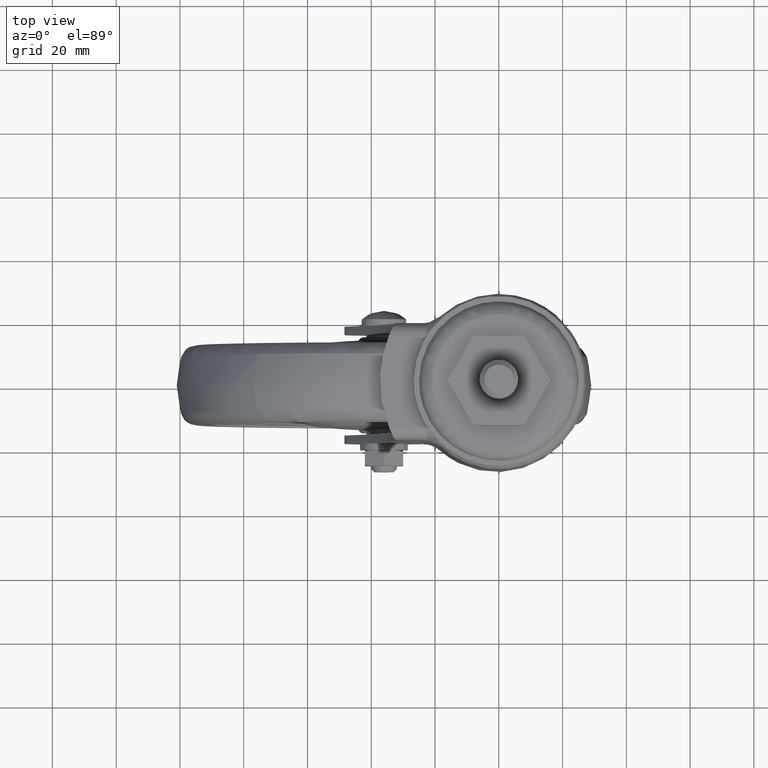
[diagram: clean part render]
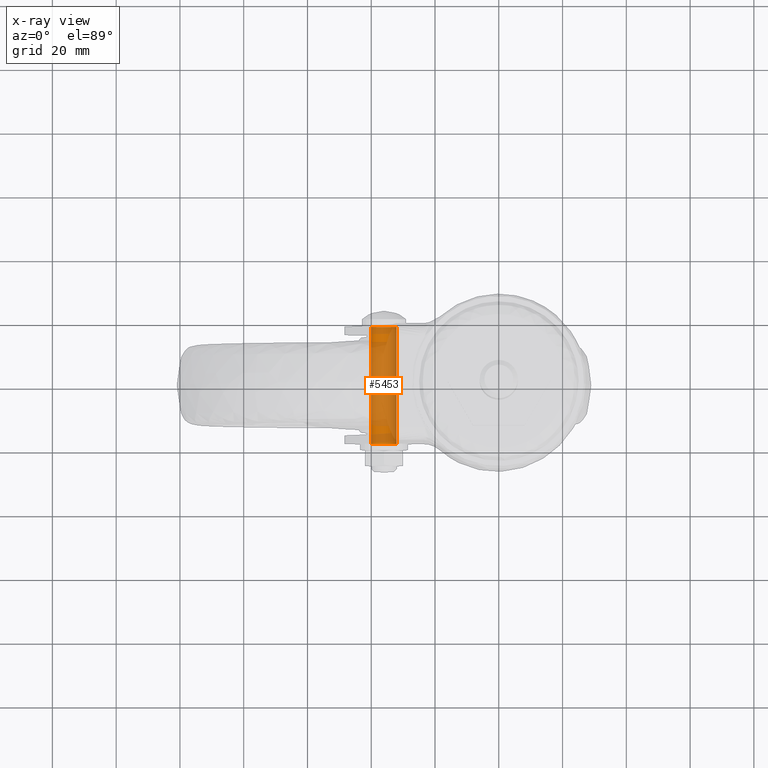
[diagram: x-ray — body ghosted, one internal face saturated and labeled with its STEP entity id]
A machine part, top view, then the same camera in x-ray: the body is ghosted and one INTERNAL B-rep face — a face not visible from any outside direction — is saturated and labeled: STEP entity #5453.
In plain terms, the highlighted face is a freeform B-spline surface patch.
Its self-contained STEP definition (entity closure, byte-faithful):
#5351=CARTESIAN_POINT('',(-32.027961894545342,-19.281181911582149,-82.028055061373095));
#5352=CARTESIAN_POINT('',(-32.014449538205589,-19.281181911582138,-82.141733085448195));
#5353=CARTESIAN_POINT('',(-32.007460806312537,-19.281181911582141,-82.255997841860676));
#5354=CARTESIAN_POINT('',(-31.763266648173111,-19.281181911582138,-86.248537035548154));
#5355=CARTESIAN_POINT('',(-35.755805841860571,-19.281181911582141,-86.492731193687561));
#5356=CARTESIAN_POINT('',(-39.748345035548034,-19.281181911582138,-86.736925351826983));
#5357=CARTESIAN_POINT('',(-39.992539193687463,-19.281181911582141,-82.744386158139520));
#5358=CARTESIAN_POINT('',(-32.027961894545342,19.303633586899284,-82.028055061373095));
#5359=CARTESIAN_POINT('',(-32.014449538205589,19.303633586899277,-82.141733085448195));
#5360=CARTESIAN_POINT('',(-32.007460806312537,19.303633586899281,-82.255997841860676));
#5361=CARTESIAN_POINT('',(-31.763266648173111,19.303633586899281,-86.248537035548154));
#5362=CARTESIAN_POINT('',(-35.755805841860571,19.303633586899281,-86.492731193687561));
#5363=CARTESIAN_POINT('',(-39.748345035548034,19.303633586899281,-86.736925351826983));
#5364=CARTESIAN_POINT('',(-39.992539193687463,19.303633586899281,-82.744386158139520));
#5372=(BOUNDED_SURFACE()B_SPLINE_SURFACE(2,1,((#5351,#5358),(#5352,#5359),(#5353,#5360),(#5354,#5361),(#5355,#5362),(#5356,#5363),(#5357,#5364)),.UNSPECIFIED.,.F.,.F.,.U.)B_SPLINE_SURFACE_WITH_KNOTS((3,2,2,3),(2,2),(0.0,0.265096679918781,6.892513677888295,13.519930675857809),(0.0,38.584815498481433),.UNSPECIFIED.)GEOMETRIC_REPRESENTATION_ITEM()RATIONAL_B_SPLINE_SURFACE(((0.977505800795127,0.977505800795127),(0.988284271247462,0.988284271247462),(1.0,1.0),(0.707106781186548,0.707106781186548),(1.0,1.0),(0.707106781186548,0.707106781186548),(1.0,1.0)))REPRESENTATION_ITEM('')SURFACE());
#5373=CARTESIAN_POINT('',(-32.027961894600928,-18.363042339934751,-82.028055060905359));
#5374=VERTEX_POINT('',#5373);
#5375=CARTESIAN_POINT('',(-36.0,-18.363042339934751,-86.500192000000098));
#5376=VERTEX_POINT('',#5375);
#5377=CARTESIAN_POINT('',(-32.027961894600921,-18.363042339934751,-82.028055060905359));
#5378=CARTESIAN_POINT('',(-32.0,-18.363042339934751,-82.263295520919826));
#5379=CARTESIAN_POINT('',(-32.0,-18.363042339934751,-82.500192000000098));
#5380=CARTESIAN_POINT('',(-31.999999999999996,-18.363042339934751,-86.500192000000098));
#5381=CARTESIAN_POINT('',(-36.0,-18.363042339934751,-86.500192000000098));
#5389=(BOUNDED_CURVE()B_SPLINE_CURVE(2,(#5377,#5378,#5379,#5380,#5381),.UNSPECIFIED.,.F.,.U.)B_SPLINE_CURVE_WITH_KNOTS((3,2,3),(0.229562473475845,0.250000000000000,0.500000000000000),.UNSPECIFIED.)CURVE()GEOMETRIC_REPRESENTATION_ITEM()RATIONAL_B_SPLINE_CURVE((0.956026754109877,0.976055948287019,1.0,0.707106781186548,1.0))REPRESENTATION_ITEM(''));
#5390=EDGE_CURVE('',#5374,#5376,#5389,.T.);
#5391=ORIENTED_EDGE('',*,*,#5390,.T.);
#5392=CARTESIAN_POINT('',(-39.992539193627351,-18.363042339934751,-82.744386159122271));
#5393=VERTEX_POINT('',#5392);
#5394=CARTESIAN_POINT('',(-36.0,-18.363042339934751,-86.500192000000098));
#5395=CARTESIAN_POINT('',(-39.762824265766888,-18.363042339934758,-86.500192000000098));
#5396=CARTESIAN_POINT('',(-39.992539193627351,-18.363042339934754,-82.744386159122271));
#5404=(BOUNDED_CURVE()B_SPLINE_CURVE(2,(#5394,#5395,#5396),.UNSPECIFIED.,.F.,.U.)B_SPLINE_CURVE_WITH_KNOTS((3,3),(0.500000000000000,0.739332962157024),.UNSPECIFIED.)CURVE()GEOMETRIC_REPRESENTATION_ITEM()RATIONAL_B_SPLINE_CURVE((1.0,0.719603993382684,0.976072041491150))REPRESENTATION_ITEM(''));
#5405=EDGE_CURVE('',#5376,#5393,#5404,.T.);
#5406=ORIENTED_EDGE('',*,*,#5405,.T.);
#5407=CARTESIAN_POINT('',(-39.992539193627351,18.362540525960700,-82.744386159122271));
#5408=VERTEX_POINT('',#5407);
#5409=CARTESIAN_POINT('',(-39.992539193627351,-18.363042339934751,-82.744386159122271));
#5410=CARTESIAN_POINT('',(-39.992539193627351,18.362540525960700,-82.744386159122271));
#5411=QUASI_UNIFORM_CURVE('',1,(#5409,#5410),.UNSPECIFIED.,.F.,.U.);
#5412=EDGE_CURVE('',#5393,#5408,#5411,.T.);
#5413=ORIENTED_EDGE('',*,*,#5412,.T.);
#5414=CARTESIAN_POINT('',(-36.0,18.362540525960700,-86.500192000000098));
#5415=VERTEX_POINT('',#5414);
#5416=CARTESIAN_POINT('',(-36.0,18.362540525960700,-86.500192000000098));
#5417=CARTESIAN_POINT('',(-39.762824265766888,18.362540525960707,-86.500192000000098));
#5418=CARTESIAN_POINT('',(-39.992539193627351,18.362540525960704,-82.744386159122271));
#5426=(BOUNDED_CURVE()B_SPLINE_CURVE(2,(#5416,#5417,#5418),.UNSPECIFIED.,.F.,.U.)B_SPLINE_CURVE_WITH_KNOTS((3,3),(0.500000000000000,0.739332962157024),.UNSPECIFIED.)CURVE()GEOMETRIC_REPRESENTATION_ITEM()RATIONAL_B_SPLINE_CURVE((1.0,0.719603993382684,0.976072041491150))REPRESENTATION_ITEM(''));
#5427=EDGE_CURVE('',#5415,#5408,#5426,.T.);
#5428=ORIENTED_EDGE('',*,*,#5427,.F.);
#5429=CARTESIAN_POINT('',(-32.027961894600921,18.362540525960700,-82.028055060905373));
#5430=VERTEX_POINT('',#5429);
#5431=CARTESIAN_POINT('',(-32.027961894600914,18.362540525960700,-82.028055060905373));
#5432=CARTESIAN_POINT('',(-32.000000000000007,18.362540525960704,-82.263295520919826));
#5433=CARTESIAN_POINT('',(-32.0,18.362540525960700,-82.500192000000098));
#5434=CARTESIAN_POINT('',(-31.999999999999996,18.362540525960707,-86.500192000000098));
#5435=CARTESIAN_POINT('',(-36.0,18.362540525960700,-86.500192000000098));
#5443=(BOUNDED_CURVE()B_SPLINE_CURVE(2,(#5431,#5432,#5433,#5434,#5435),.UNSPECIFIED.,.F.,.U.)B_SPLINE_CURVE_WITH_KNOTS((3,2,3),(0.229562473475845,0.250000000000000,0.500000000000000),.UNSPECIFIED.)CURVE()GEOMETRIC_REPRESENTATION_ITEM()RATIONAL_B_SPLINE_CURVE((0.956026754109878,0.976055948287020,1.0,0.707106781186548,1.0))REPRESENTATION_ITEM(''));
#5444=EDGE_CURVE('',#5430,#5415,#5443,.T.);
#5445=ORIENTED_EDGE('',*,*,#5444,.F.);
#5446=CARTESIAN_POINT('',(-32.027961894600928,-18.363042339934751,-82.028055060905359));
#5447=CARTESIAN_POINT('',(-32.027961894600921,18.362540525960700,-82.028055060905373));
#5448=QUASI_UNIFORM_CURVE('',1,(#5446,#5447),.UNSPECIFIED.,.F.,.U.);
#5449=EDGE_CURVE('',#5374,#5430,#5448,.T.);
#5450=ORIENTED_EDGE('',*,*,#5449,.F.);
#5451=EDGE_LOOP('',(#5391,#5406,#5413,#5428,#5445,#5450));
#5452=FACE_OUTER_BOUND('',#5451,.T.);
#5453=ADVANCED_FACE('',(#5452),#5372,.T.);